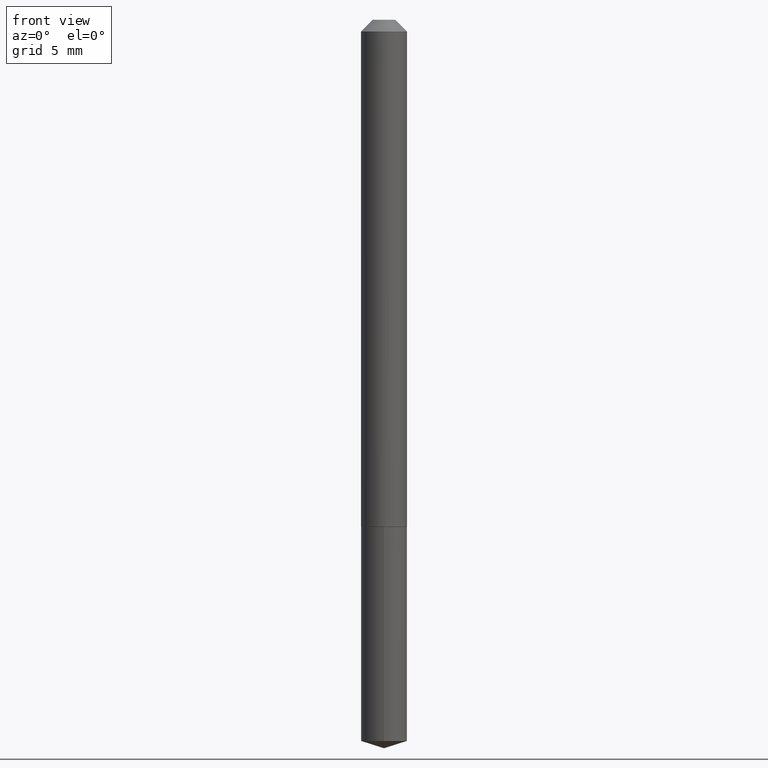
[diagram: clean part render]
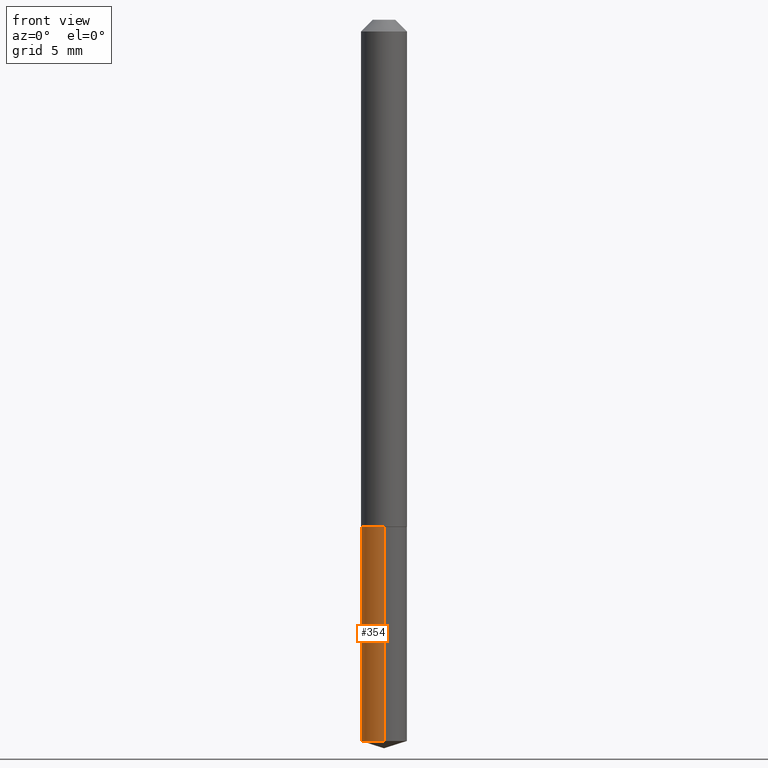
[diagram: same view with one face highlighted and labeled with its STEP entity id]
A machine part, front view. The second image highlights one B-rep face of the part: STEP entity #354.
In plain terms, the highlighted cylindrical surface (edge-blend (fillet) strip) has radius 1.5494 mm, axis along (-0, 0, 1).
Its self-contained STEP definition (entity closure, byte-faithful):
#12 = CARTESIAN_POINT ( 'NONE',  ( 4.334310688136938416E-16, 0.06099999999999530798, -1.342400000000000038 ) ) ;
#25 = LINE ( 'NONE', #97, #377 ) ;
#34 = CIRCLE ( 'NONE', #106, 0.06099999999999999173 ) ;
#49 = CARTESIAN_POINT ( 'NONE',  ( 4.334310688137077946E-16, 0.06099999999999530798, -1.342400000000000038 ) ) ;
#52 = VERTEX_POINT ( 'NONE', #371 ) ;
#60 = EDGE_CURVE ( 'NONE', #372, #52, #34, .T. ) ;
#61 = CARTESIAN_POINT ( 'NONE',  ( 4.334310688137076467E-16, 0.06099999999999330957, -1.909866773878382773 ) ) ;
#83 = ORIENTED_EDGE ( 'NONE', *, *, #336, .T. ) ;
#97 = CARTESIAN_POINT ( 'NONE',  ( -4.259607233388293679E-16, -0.06100000000000468242, -1.342399999999999594 ) ) ;
#106 = AXIS2_PLACEMENT_3D ( 'NONE', #219, #218, #341 ) ;
#116 = LINE ( 'NONE', #12, #279 ) ;
#121 = EDGE_CURVE ( 'NONE', #177, #343, #207, .T. ) ;
#128 = CARTESIAN_POINT ( 'NONE',  ( 3.282797325422927074E-29, -4.686964549263038164E-15, -1.342399999999999816 ) ) ;
#150 = ORIENTED_EDGE ( 'NONE', *, *, #60, .T. ) ;
#162 = FACE_OUTER_BOUND ( 'NONE', #174, .T. ) ;
#170 = EDGE_CURVE ( 'NONE', #372, #177, #116, .T. ) ;
#174 = EDGE_LOOP ( 'NONE', ( #264, #150, #83, #236 ) ) ;
#177 = VERTEX_POINT ( 'NONE', #49 ) ;
#193 = DIRECTION ( 'NONE',  ( -2.445528322279636320E-29, 3.491396108408376295E-15, 1.000000000000000000 ) ) ;
#199 = AXIS2_PLACEMENT_3D ( 'NONE', #128, #360, #211 ) ;
#207 = CIRCLE ( 'NONE', #234, 0.06099999999999999173 ) ;
#211 = DIRECTION ( 'NONE',  ( -6.982962677686265922E-15, -1.000000000000000000, 4.478439333875842027E-15 ) ) ;
#214 = CARTESIAN_POINT ( 'NONE',  ( -4.259607233388293679E-16, -0.06100000000000468242, -1.342399999999999594 ) ) ;
#218 = DIRECTION ( 'NONE',  ( -2.445528322279636320E-29, 3.491396108408376295E-15, 1.000000000000000000 ) ) ;
#219 = CARTESIAN_POINT ( 'NONE',  ( 4.670553392895165587E-29, -6.668215835233079281E-15, -1.909866773878382551 ) ) ;
#231 = DIRECTION ( 'NONE',  ( -2.445528322279636600E-29, 3.491396108408376295E-15, 1.000000000000000000 ) ) ;
#234 = AXIS2_PLACEMENT_3D ( 'NONE', #278, #193, #310 ) ;
#236 = ORIENTED_EDGE ( 'NONE', *, *, #121, .F. ) ;
#264 = ORIENTED_EDGE ( 'NONE', *, *, #170, .F. ) ;
#278 = CARTESIAN_POINT ( 'NONE',  ( 3.282797325422927074E-29, -4.686964549263038164E-15, -1.342399999999999816 ) ) ;
#279 = VECTOR ( 'NONE', #231, 39.37007874015748143 ) ;
#300 = DIRECTION ( 'NONE',  ( -2.445528322279636600E-29, 3.491396108408376295E-15, 1.000000000000000000 ) ) ;
#307 = CYLINDRICAL_SURFACE ( 'NONE', #199, 0.06099999999999999173 ) ;
#310 = DIRECTION ( 'NONE',  ( -6.982962677686265922E-15, -1.000000000000000000, 4.478439333875842027E-15 ) ) ;
#336 = EDGE_CURVE ( 'NONE', #52, #343, #25, .T. ) ;
#341 = DIRECTION ( 'NONE',  ( -6.982962677686265922E-15, -1.000000000000000000, 4.478439333875842027E-15 ) ) ;
#343 = VERTEX_POINT ( 'NONE', #214 ) ;
#354 = ADVANCED_FACE ( 'NONE', ( #162 ), #307, .T. ) ;
#360 = DIRECTION ( 'NONE',  ( -2.445528322279636320E-29, 3.491396108408376295E-15, 1.000000000000000000 ) ) ;
#371 = CARTESIAN_POINT ( 'NONE',  ( -4.259607233388153656E-16, -0.06100000000000665307, -1.909866773878382107 ) ) ;
#372 = VERTEX_POINT ( 'NONE', #61 ) ;
#377 = VECTOR ( 'NONE', #300, 39.37007874015748143 ) ;